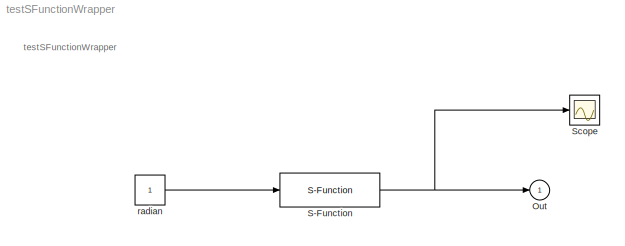
MODEL testSFunctionWrapper
KIND model
BLOCK [Outport] Out
  IconDisplay = Port number
  InitialOutput = 0
  SID = 4
BLOCK [S-Function] S-Function
  EnableBusSupport = off
  FunctionName = wrapsfcn
  Ports = [1, 1]
  SFunctionDeploymentMode = off
  SFunctionModules = 'rad2Deg'
  SID = 1
BLOCK [Scope] Scope
  Ports = [1]
  SID = 2
  ScopeSpecificationString = Simulink.scopes.TimeScopeBlockCfg('CurrentConfiguration', extmgr.ConfigurationSet(extmgr.Configuration('Core','General UI',true),extmgr.Configuration('Core','Source UI',true),extmgr.Configuration('Sources','WiredSimulink',true,'DataLoggingSaveFormat','Array','DataLoggingLimitDataPoints',true,'DataLoggingDecimation','1','DataLoggingDecimateData',true),extmgr.Configuration('Visuals','Time Domain',tr...<+1711ch>
BLOCK [Constant] radian
  SID = 7
ANNOTATION (root): testSFunctionWrapper
NET S-Function:1 -> Out:1, Scope:1
LINE radian:1 -> S-Function:1
note: NET lines group one-source signal fan-out (src -> all destinations, sorted); 1:1 wires keep LINE
